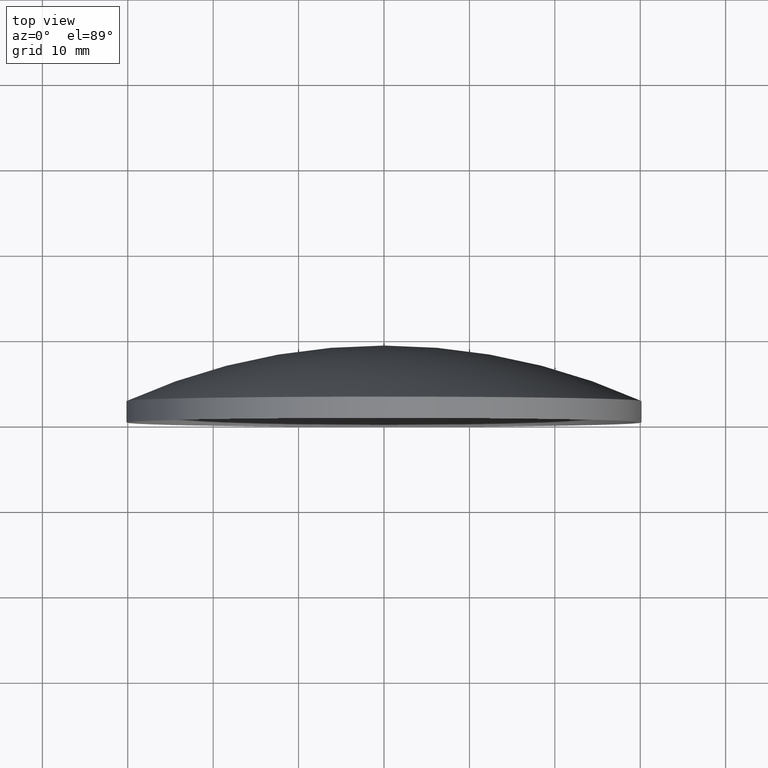
[diagram: clean part render]
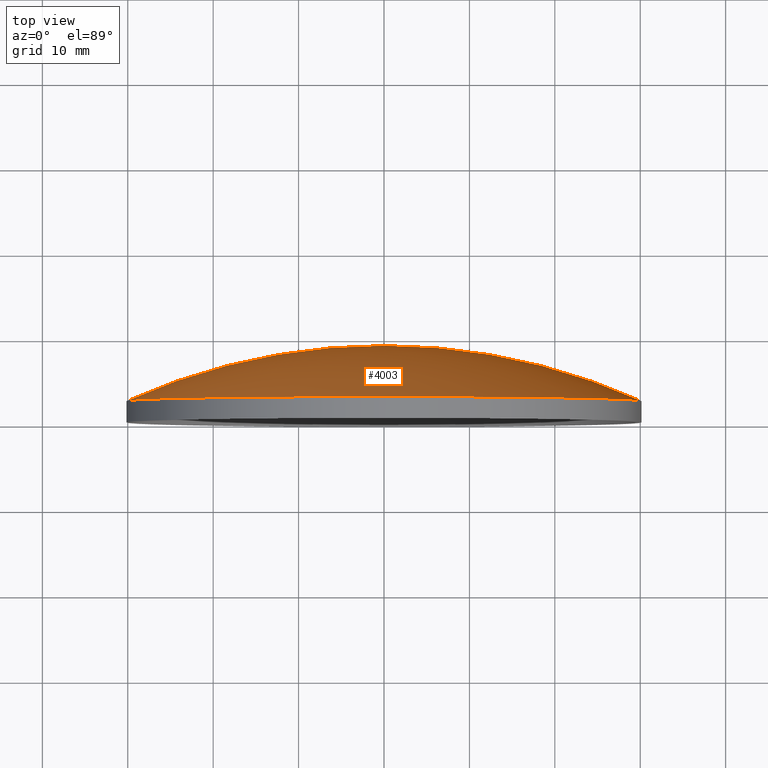
[diagram: same view with one face highlighted and labeled with its STEP entity id]
A machine part, top view. The second image highlights one B-rep face of the part: STEP entity #4003.
In plain terms, the highlighted spherical surface has radius 73.1748 mm.
Its self-contained STEP definition (entity closure, byte-faithful):
#421 = EDGE_CURVE ( 'NONE', #6692, #5582, #8013, .T. ) ;
#624 = DIRECTION ( 'NONE',  ( -0.0000000000000000000, 0.0000000000000000000, 1.000000000000000000 ) ) ;
#950 = CARTESIAN_POINT ( 'NONE',  ( 6.038271066500516900E-013, 8.999999999999994700, 0.0000000000000000000 ) ) ;
#1363 = AXIS2_PLACEMENT_3D ( 'NONE', #3979, #8891, #11900 ) ;
#1480 = DIRECTION ( 'NONE',  ( -1.000000000000000000, 0.0000000000000000000, 0.0000000000000000000 ) ) ;
#2565 = AXIS2_PLACEMENT_3D ( 'NONE', #10476, #12545, #11437 ) ;
#3633 = CARTESIAN_POINT ( 'NONE',  ( 1.980006491678358300E-014, -64.17480769230762400, 0.0000000000000000000 ) ) ;
#3684 = FACE_OUTER_BOUND ( 'NONE', #4808, .T. ) ;
#3729 = ORIENTED_EDGE ( 'NONE', *, *, #5222, .F. ) ;
#3755 = ORIENTED_EDGE ( 'NONE', *, *, #421, .T. ) ;
#3979 = CARTESIAN_POINT ( 'NONE',  ( -3.168010386685173100E-014, 2.500000000000240700, 0.0000000000000000000 ) ) ;
#4003 = ADVANCED_FACE ( 'NONE', ( #3684 ), #9909, .T. ) ;
#4341 = ORIENTED_EDGE ( 'NONE', *, *, #12373, .F. ) ;
#4808 = EDGE_LOOP ( 'NONE', ( #4341, #3755, #3729 ) ) ;
#5155 = CIRCLE ( 'NONE', #6890, 73.17480769230762400 ) ;
#5222 = EDGE_CURVE ( 'NONE', #5291, #5582, #10215, .T. ) ;
#5291 = VERTEX_POINT ( 'NONE', #9368 ) ;
#5582 = VERTEX_POINT ( 'NONE', #9519 ) ;
#6692 = VERTEX_POINT ( 'NONE', #950 ) ;
#6890 = AXIS2_PLACEMENT_3D ( 'NONE', #9354, #7414, #1480 ) ;
#7414 = DIRECTION ( 'NONE',  ( 0.0000000000000000000, 0.0000000000000000000, -1.000000000000000000 ) ) ;
#7840 = AXIS2_PLACEMENT_3D ( 'NONE', #3633, #624, #12452 ) ;
#8013 = CIRCLE ( 'NONE', #2565, 73.17480769230762400 ) ;
#8891 = DIRECTION ( 'NONE',  ( -7.920025966713426600E-015, -1.000000000000000000, -0.0000000000000000000 ) ) ;
#9354 = CARTESIAN_POINT ( 'NONE',  ( 1.980006491678358300E-014, -64.17480769230762400, 0.0000000000000000000 ) ) ;
#9368 = CARTESIAN_POINT ( 'NONE',  ( 30.14999999999998800, 2.500000000000001800, 0.0000000000000000000 ) ) ;
#9519 = CARTESIAN_POINT ( 'NONE',  ( -30.15000000000005200, 2.500000000000479600, 3.692310099429273600E-015 ) ) ;
#9909 = SPHERICAL_SURFACE ( 'NONE', #7840, 73.17480769230762400 ) ;
#10215 = CIRCLE ( 'NONE', #1363, 30.15000000000002000 ) ;
#10476 = CARTESIAN_POINT ( 'NONE',  ( 1.980006491678358300E-014, -64.17480769230762400, 0.0000000000000000000 ) ) ;
#11437 = DIRECTION ( 'NONE',  ( 1.000000000000000000, 0.0000000000000000000, -1.224646799147353200E-016 ) ) ;
#11900 = DIRECTION ( 'NONE',  ( 1.000000000000000000, -7.925643741817744600E-015, 0.0000000000000000000 ) ) ;
#12373 = EDGE_CURVE ( 'NONE', #6692, #5291, #5155, .T. ) ;
#12452 = DIRECTION ( 'NONE',  ( 1.000000000000000000, -7.965406487695903000E-015, 0.0000000000000000000 ) ) ;
#12545 = DIRECTION ( 'NONE',  ( 1.224646799147353200E-016, -9.699234449299519100E-031, 1.000000000000000000 ) ) ;